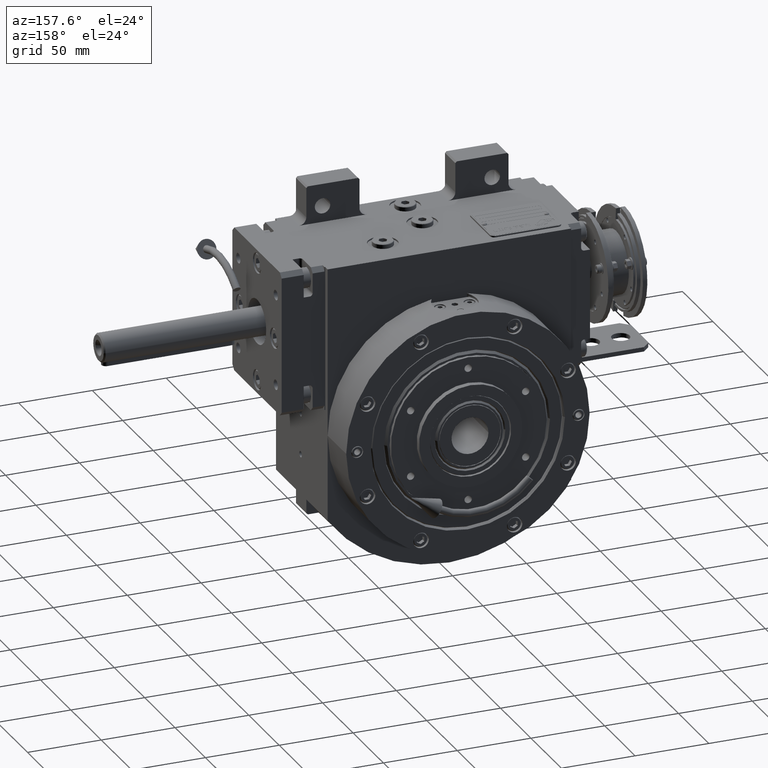
[diagram: clean part render]
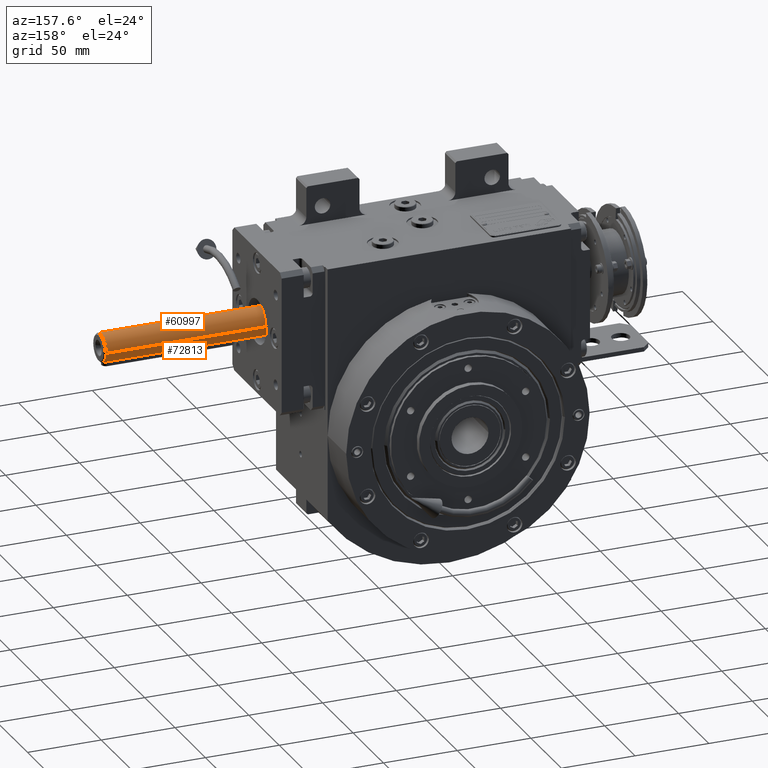
[diagram: same view with one multi-face feature highlighted, each face labeled with its STEP entity id]
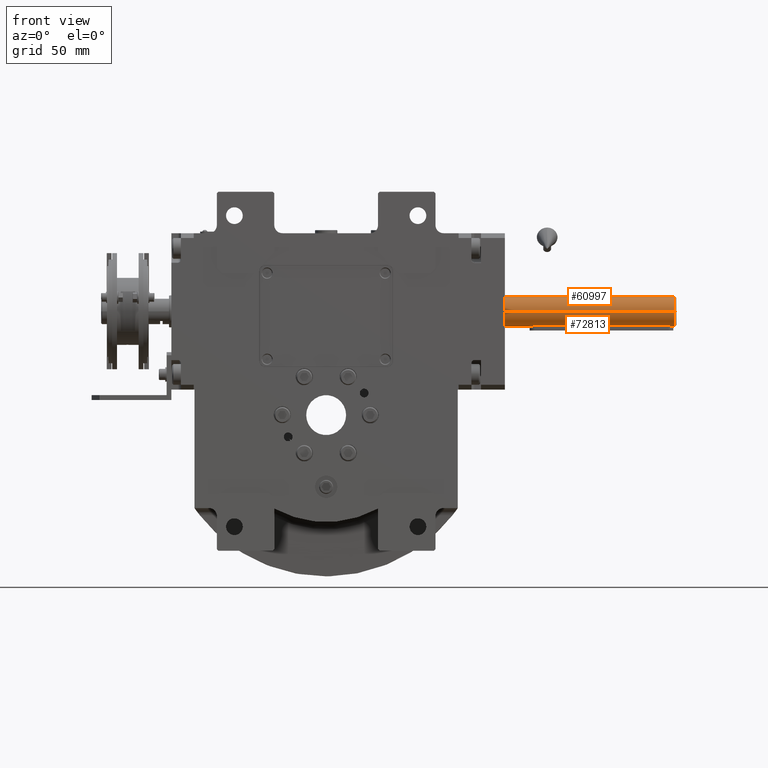
[diagram: same view with one multi-face feature highlighted, each face labeled with its STEP entity id]
A machine part, auxiliary view. The highlighted faces form ONE feature: a constant-radius fillet chain: 2 tangent blend faces with common blend radius 9.5 mm. The faces share edges in the B-rep.
A second angle (front view) of the same feature is appended — it is thin or edge-on in the first view.
Their STEP definitions:
[1] entity #72813 (Cylinder):
#374 = CARTESIAN_POINT ( 'NONE',  ( 2.920503050970467473, -96.80692283689413102, 9.041319886050864341 ) ) ;
#609 = CARTESIAN_POINT ( 'NONE',  ( 6.328605869028309470E-11, -184.4999999999936051, 9.500000000000023093 ) ) ;
#814 = CARTESIAN_POINT ( 'NONE',  ( 1.435996171197315041, -94.86467874582793058, 9.390445074408972914 ) ) ;
#1460 = CARTESIAN_POINT ( 'NONE',  ( 1.898695255802152593, -183.8233775964068286, 9.308038177493170195 ) ) ;
#1668 = CARTESIAN_POINT ( 'NONE',  ( 2.896333877870730600, -96.71220316792228289, 9.048659579327384961 ) ) ;
#2229 = CYLINDRICAL_SURFACE ( 'NONE', #40238, 9.500000000000000000 ) ;
#2764 = CARTESIAN_POINT ( 'NONE',  ( 1.110860850581155246, -184.2868045359008136, 9.434806866654129820 ) ) ;
#2768 = VERTEX_POINT ( 'NONE', #84080 ) ;
#2968 = CARTESIAN_POINT ( 'NONE',  ( -2.768052872245681861, -96.34331565917344165, 9.087531888042622796 ) ) ;
#3434 = CARTESIAN_POINT ( 'NONE',  ( -9.499754194381903716, -185.4997542087409101, 1.243514928141055798 ) ) ;
#3487 = VECTOR ( 'NONE', #62989, 1000.000000000000000 ) ;
#3531 = ORIENTED_EDGE ( 'NONE', *, *, #79882, .F. ) ;
#3860 = DIRECTION ( 'NONE',  ( 4.683861624749757595E-31, -1.000000000000000000, -9.367723249499515189E-31 ) ) ;
#4069 = EDGE_CURVE ( 'NONE', #2768, #30997, #28482, .T. ) ;
#4936 = VERTEX_POINT ( 'NONE', #50949 ) ;
#5118 = CARTESIAN_POINT ( 'NONE',  ( -1.158690065661222235, -184.2672150555362975, 9.429034016073364555 ) ) ;
#5531 = CARTESIAN_POINT ( 'NONE',  ( -2.896333950407050661, -182.2877965705343968, 9.048659544944911204 ) ) ;
#5961 = CARTESIAN_POINT ( 'NONE',  ( -2.654035528270655586, -182.9122416696433788, 9.123168940508953995 ) ) ;
#6256 = B_SPLINE_CURVE_WITH_KNOTS ( 'NONE', 3,
 ( #609, #27115, #25821, #78777, #18892, #58358, #45388, #47520, #2764, #54875, #68315, #7586, #80474, #22316, #8871, #42309, #1460, #40567, #14540, #48804, #47096, #75256, #41014, #73543, #20608, #27951, #21024, #35353, #67479, #21467, #14976, #8029, #9310, #61825, #74840, #14099, #8442 ),
 .UNSPECIFIED., .F., .F.,
 ( 4, 2, 2, 1, 1, 1, 2, 2, 2, 2, 2, 2, 2, 2, 2, 2, 1, 1, 2, 2, 4 ),
 ( 0.5000000000000000000, 0.5624999999999206191, 0.5937499999998809841, 0.6093749999998611111, 0.6171874999998497868, 0.6210937499998456790, 0.6230468749998420153, 0.6249999999998383515, 0.6874999999998678835, 0.7187499999998826494, 0.7343749999998923084, 0.7421874999998970823, 0.7499999999999018563, 0.8124999999999580336, 0.8437499999999860112, 0.8593750000000047740, 0.8671875000000142109, 0.8710937500000129896, 0.8730468750000125455, 0.8750000000000119904, 1.000000000000000000 ),
 .UNSPECIFIED. ) ;
#6413 = CARTESIAN_POINT ( 'NONE',  ( -2.332787681812009239, -183.3871786385692815, 9.209767900739516122 ) ) ;
#6927 = CARTESIAN_POINT ( 'NONE',  ( 1.158689130677410084, -94.73278455522860497, 9.429034128071357657 ) ) ;
#7349 = CARTESIAN_POINT ( 'NONE',  ( -0.6700261784408713117, -94.57411789480762820, 9.476593792608097644 ) ) ;
#7586 = CARTESIAN_POINT ( 'NONE',  ( 1.148703745862511338, -184.2713712515663644, 9.430257407298213934 ) ) ;
#7690 = DIRECTION ( 'NONE',  ( 4.683861624749757595E-31, -1.000000000000000000, -9.367723249499515189E-31 ) ) ;
#8029 = CARTESIAN_POINT ( 'NONE',  ( 2.764238398039184030, -182.6657623577157779, 9.088697177468000987 ) ) ;
#8226 = CARTESIAN_POINT ( 'NONE',  ( 1.324139200224776047, -94.80771358181858943, 9.406950166185275464 ) ) ;
#8442 = CARTESIAN_POINT ( 'NONE',  ( 2.999999999999900968, -181.5000000000000000, 9.013878188659973034 ) ) ;
#8641 = CARTESIAN_POINT ( 'NONE',  ( -2.309831205498338313, -95.56718997630940748, 9.217002098052509140 ) ) ;
#8871 = CARTESIAN_POINT ( 'NONE',  ( 1.680644856745512117, -183.9869637213608939, 9.349632015491161852 ) ) ;
#9310 = CARTESIAN_POINT ( 'NONE',  ( 2.767317494185540294, -182.6584341510141485, 9.087756606422052741 ) ) ;
#9448 = B_SPLINE_CURVE_WITH_KNOTS ( 'NONE', 3,
 ( #28157, #47740, #66809, #374, #1668, #61157, #21674, #80683, #48180, #74193, #79828, #47293, #41228, #27317, #14750, #67674, #59437, #13466, #13013, #20391, #33400, #46880, #54645, #39485, #59852, #814, #8226, #13885, #65970, #52923, #19947, #60743, #46444, #6927, #80263, #26882, #73330, #40342, #7349, #33835, #54212, #53791, #73749, #14305, #34693, #15169, #69380, #48585, #23395, #68085, #62042, #29898, #9928, #22517, #63332, #61597, #62451, #8641, #75035, #55926, #23811, #22095, #74615, #28608, #62880, #55094, #35992, #49871, #2968, #75918, #30330, #42945 ),
 .UNSPECIFIED., .F., .F.,
 ( 4, 2, 2, 1, 1, 1, 2, 2, 2, 2, 2, 2, 2, 2, 2, 2, 1, 1, 2, 2, 2, 2, 2, 1, 1, 1, 2, 2, 2, 2, 2, 2, 2, 2, 2, 2, 1, 1, 2, 2, 4 ),
 ( 0.000000000000000000, 0.06250000000001260103, 0.09375000000001888767, 0.1093750000000198869, 0.1171875000000204003, 0.1210937500000185685, 0.1230468750000176942, 0.1250000000000167921, 0.1875000000000880962, 0.2187500000001255385, 0.2343750000001428579, 0.2421875000001514899, 0.2500000000001601497, 0.3125000000002409184, 0.3437500000002813860, 0.3593750000003026468, 0.3671875000003120837, 0.3710937500003168021, 0.3730468750003180234, 0.3750000000003192446, 0.5000000000003188561, 0.5625000000003187450, 0.5937500000003181899, 0.6093750000003186340, 0.6171875000003180789, 0.6210937500003170797, 0.6230468750003165246, 0.6250000000003160805, 0.6875000000003245182, 0.7187500000003298473, 0.7343750000003326228, 0.7421875000003339551, 0.7500000000003352874, 0.8125000000003389511, 0.8437500000003407274, 0.8593750000003418377, 0.8671875000003451683, 0.8710937500003468337, 0.8730468750003445022, 0.8750000000003422818, 1.000000000000000000 ),
 .UNSPECIFIED. ) ;
#9928 = CARTESIAN_POINT ( 'NONE',  ( -1.943068492336376130, -95.21351398759517792, 9.299014739455403245 ) ) ;
#9957 = CARTESIAN_POINT ( 'NONE',  ( 9.499754196004518647, -185.4997542087252214, 1.243514915866845039 ) ) ;
#12065 = CARTESIAN_POINT ( 'NONE',  ( -2.801440523473028854, -182.5737456935509044, 9.077383305506369737 ) ) ;
#13013 = CARTESIAN_POINT ( 'NONE',  ( 2.233000185789806746, -95.49633372963562294, 9.234080571284474459 ) ) ;
#13466 = CARTESIAN_POINT ( 'NONE',  ( 2.294623599499060695, -95.56646025446697479, 9.219224849880713890 ) ) ;
#13670 = VECTOR ( 'NONE', #7690, 1000.000000000000000 ) ;
#13885 = CARTESIAN_POINT ( 'NONE',  ( 1.288025263247386087, -94.79030264777989601, 9.412060777959782243 ) ) ;
#14099 = CARTESIAN_POINT ( 'NONE',  ( 2.999999999999922728, -181.9070530595016066, 9.018042291469070548 ) ) ;
#14305 = CARTESIAN_POINT ( 'NONE',  ( -1.110854838130794997, -94.71319305268598043, 9.434807603659800535 ) ) ;
#14395 = CARTESIAN_POINT ( 'NONE',  ( 2.999999999999900968, -181.5000000000000000, 9.013878188659973034 ) ) ;
#14540 = CARTESIAN_POINT ( 'NONE',  ( 2.009855530698375414, -183.7274119753677439, 9.284892392217921397 ) ) ;
#14627 = EDGE_LOOP ( 'NONE', ( #15214, #20190, #24742, #3531, #30835 ) ) ;
#14750 = CARTESIAN_POINT ( 'NONE',  ( 2.499491723490012696, -95.83803613019898648, 9.166504859322618159 ) ) ;
#14976 = CARTESIAN_POINT ( 'NONE',  ( 2.759557725807158413, -182.6768411226915987, 9.090128963701895159 ) ) ;
#15169 = CARTESIAN_POINT ( 'NONE',  ( -1.140767914176999964, -94.72534861557059571, 9.431223342483049166 ) ) ;
#15214 = ORIENTED_EDGE ( 'NONE', *, *, #46593, .T. ) ;
#15621 = CARTESIAN_POINT ( 'NONE',  ( -7.596638435447587767, -185.4997542087380396, 5.838042789439123581 ) ) ;
#16072 = CARTESIAN_POINT ( 'NONE',  ( 1.243514922003853274, -185.4997542087323552, 9.499754195193936823 ) ) ;
#16148 = FACE_BOUND ( 'NONE', #14627, .T. ) ;
#16494 = CARTESIAN_POINT ( 'NONE',  ( -4.784256514783731262, -185.4997542087358795, 8.300755913230570826 ) ) ;
#16648 = VECTOR ( 'NONE', #69075, 1000.000000000000000 ) ;
#17768 = CARTESIAN_POINT ( 'NONE',  ( -3.000000000000099032, -97.50000000000000000, 9.013878188659973034 ) ) ;
#18138 = CARTESIAN_POINT ( 'NONE',  ( -2.853716826606122581, -182.4266303042486470, 9.061558790492936666 ) ) ;
#18892 = CARTESIAN_POINT ( 'NONE',  ( 0.7671320443956112234, -184.4020199712927308, 9.469272463188925570 ) ) ;
#19006 = CARTESIAN_POINT ( 'NONE',  ( -3.000000000000075495, -181.7034760972285881, 9.015959573848046915 ) ) ;
#19867 = VERTEX_POINT ( 'NONE', #14395 ) ;
#19947 = CARTESIAN_POINT ( 'NONE',  ( 1.181140549333251411, -94.74227524995970384, 9.426234890811809208 ) ) ;
#20190 = ORIENTED_EDGE ( 'NONE', *, *, #81052, .F. ) ;
#20391 = CARTESIAN_POINT ( 'NONE',  ( 2.211729689299838153, -95.47286155067132540, 9.239144193336677802 ) ) ;
#20608 = CARTESIAN_POINT ( 'NONE',  ( 2.602469015158392018, -182.9955727325826160, 9.137631542706252219 ) ) ;
#21024 = CARTESIAN_POINT ( 'NONE',  ( 2.699222470889498293, -182.8098876183477159, 9.108662257717114130 ) ) ;
#21467 = CARTESIAN_POINT ( 'NONE',  ( 2.748194182956040343, -182.7032927342457924, 9.093616305902523678 ) ) ;
#21555 = CARTESIAN_POINT ( 'NONE',  ( -9.500000000000065725, -66.02960782943348761, 2.609024107869117870E-12 ) ) ;
#21674 = CARTESIAN_POINT ( 'NONE',  ( 2.830818052340046354, -96.50476281573874360, 9.068480858057716532 ) ) ;
#22095 = CARTESIAN_POINT ( 'NONE',  ( -2.699222432197005972, -96.19011230137498103, 9.108662277938814000 ) ) ;
#22122 = CARTESIAN_POINT ( 'NONE',  ( 9.499938531693230104, -185.4999385694899843, -2.358706840954738482E-07 ) ) ;
#22203 = FACE_OUTER_BOUND ( 'NONE', #53186, .T. ) ;
#22316 = CARTESIAN_POINT ( 'NONE',  ( 1.432446507911423694, -184.1431647215893861, 9.392028249004720664 ) ) ;
#22517 = CARTESIAN_POINT ( 'NONE',  ( -2.009855589155224553, -95.27258807728566126, 9.284892378324565598 ) ) ;
#23395 = CARTESIAN_POINT ( 'NONE',  ( -1.432446504045519209, -94.85683527585973707, 9.392028251569573882 ) ) ;
#23811 = CARTESIAN_POINT ( 'NONE',  ( -2.645267199348790843, -96.08261101669754112, 9.124972257304124312 ) ) ;
#24646 = CARTESIAN_POINT ( 'NONE',  ( -1.943281275480839732, -183.7993588875465889, 9.300959572582330637 ) ) ;
#24742 = ORIENTED_EDGE ( 'NONE', *, *, #4069, .F. ) ;
#25061 = LINE ( 'NONE', #31172, #77577 ) ;
#25480 = CARTESIAN_POINT ( 'NONE',  ( -1.288025277366784405, -184.2096973454183058, 9.412060778189172083 ) ) ;
#25821 = CARTESIAN_POINT ( 'NONE',  ( 0.3797345513503766479, -184.4823960739408051, 9.494147135845549812 ) ) ;
#26026 = EDGE_CURVE ( 'NONE', #84006, #27529, #57885, .T. ) ;
#26349 = CARTESIAN_POINT ( 'NONE',  ( -0.3747365616103432995, -184.5000000000000000, 9.500000000000042633 ) ) ;
#26882 = CARTESIAN_POINT ( 'NONE',  ( 0.3746751130923832718, -94.50000003100289803, 9.499992998717548431 ) ) ;
#27115 = CARTESIAN_POINT ( 'NONE',  ( 0.1873682808050524118, -184.5000000000000568, 9.500000000000047962 ) ) ;
#27317 = CARTESIAN_POINT ( 'NONE',  ( 2.654035575129012337, -96.08775841754081171, 9.123168921844232671 ) ) ;
#27529 = VERTEX_POINT ( 'NONE', #77492 ) ;
#27951 = CARTESIAN_POINT ( 'NONE',  ( 2.645267265842243809, -182.9173888571903035, 9.124972229863629991 ) ) ;
#28157 = CARTESIAN_POINT ( 'NONE',  ( 2.999999999999900968, -97.50000000000000000, 9.013878188659973034 ) ) ;
#28482 = B_SPLINE_CURVE_WITH_KNOTS ( 'NONE', 3,
 ( #52816, #19006, #31592, #65868, #5531, #18138, #32007, #12065, #32444, #45492, #45903, #38525, #58898, #5961, #85795, #71508, #6413, #78015, #58463, #57625, #84091, #32890, #24646, #39379, #84925, #59338, #51133, #25480, #51975, #77590, #51541, #65005, #64585, #5118, #44617, #26349, #85372 ),
 .UNSPECIFIED., .F., .F.,
 ( 4, 2, 2, 1, 1, 1, 2, 2, 2, 2, 2, 2, 2, 2, 2, 2, 1, 1, 2, 2, 4 ),
 ( 0.000000000000000000, 0.06249999999996323774, 0.09374999999994056143, 0.1093749999999292372, 0.1171874999999193423, 0.1210937499999143740, 0.1230468749999119038, 0.1249999999999094336, 0.1874999999999186762, 0.2187499999999195643, 0.2343749999999200084, 0.2421874999999227840, 0.2499999999999255595, 0.3124999999999716338, 0.3437499999999969469, 0.3593750000000072720, 0.3671875000000148215, 0.3710937500000186517, 0.3730468750000182077, 0.3750000000000177636, 0.5000000000000000000 ),
 .UNSPECIFIED. ) ;
#28608 = CARTESIAN_POINT ( 'NONE',  ( -2.737669309331704603, -96.27301801012754368, 9.096856623353525961 ) ) ;
#28882 = CARTESIAN_POINT ( 'NONE',  ( 9.499999999999934275, -66.02960782943348761, -2.081668171172168513E-12 ) ) ;
#29343 = CARTESIAN_POINT ( 'NONE',  ( 2.999999999999900968, -97.50000000000000000, 9.013878188659973034 ) ) ;
#29898 = CARTESIAN_POINT ( 'NONE',  ( -1.898695291269320906, -95.17662243233962727, 9.308038168896894504 ) ) ;
#30330 = CARTESIAN_POINT ( 'NONE',  ( -3.000000000000076383, -97.09294754107436631, 9.018042211120356200 ) ) ;
#30835 = ORIENTED_EDGE ( 'NONE', *, *, #73067, .F. ) ;
#30997 = VERTEX_POINT ( 'NONE', #61849 ) ;
#31172 = CARTESIAN_POINT ( 'NONE',  ( -9.500000000000065725, -66.02960777374481438, 5.273559366969493567E-13 ) ) ;
#31592 = CARTESIAN_POINT ( 'NONE',  ( -2.979241833863479627, -181.9036015261704620, 9.023080161994625925 ) ) ;
#32007 = CARTESIAN_POINT ( 'NONE',  ( -2.830818109231184376, -182.4952370252211438, 9.068480838544328293 ) ) ;
#32444 = CARTESIAN_POINT ( 'NONE',  ( -2.786101570419483142, -182.6126035861131811, 9.082041225046250332 ) ) ;
#32735 = CIRCLE ( 'NONE', #45203, 9.500000000000000000 ) ;
#32890 = CARTESIAN_POINT ( 'NONE',  ( -2.143571714493754055, -183.5990690381319439, 9.255083310985195766 ) ) ;
#33400 = CARTESIAN_POINT ( 'NONE',  ( 2.167673386560678317, -95.42581808886643557, 9.249494867276307986 ) ) ;
#33835 = CARTESIAN_POINT ( 'NONE',  ( -0.7670909884113928934, -94.59796890611204390, 9.469277274293066426 ) ) ;
#34693 = CARTESIAN_POINT ( 'NONE',  ( -1.128806811709914593, -94.72046102366429920, 9.432663907830590944 ) ) ;
#35353 = CARTESIAN_POINT ( 'NONE',  ( 2.715497913150030751, -182.7756736591285005, 9.103672099854511757 ) ) ;
#35992 = CARTESIAN_POINT ( 'NONE',  ( -2.764238414421965828, -96.33423768111482843, 9.088697178817977118 ) ) ;
#36513 = CARTESIAN_POINT ( 'NONE',  ( -3.000000000000099032, -97.50000000000000000, 9.013878188659973034 ) ) ;
#38525 = CARTESIAN_POINT ( 'NONE',  ( -2.771832820512553752, -182.6475879265620677, 9.086380962506421355 ) ) ;
#39379 = CARTESIAN_POINT ( 'NONE',  ( -1.763473995896153390, -183.9348269312462207, 9.335481101411909677 ) ) ;
#39485 = CARTESIAN_POINT ( 'NONE',  ( 1.763473992615532504, -95.06517306677625356, 9.335481102779599638 ) ) ;
#39876 = VERTEX_POINT ( 'NONE', #17768 ) ;
#40238 = AXIS2_PLACEMENT_3D ( 'NONE', #63435, #42184, #62559 ) ;
#40342 = CARTESIAN_POINT ( 'NONE',  ( -0.3796883316226619121, -94.51759803783039615, 9.494152386371982999 ) ) ;
#40567 = CARTESIAN_POINT ( 'NONE',  ( 1.943068448245731439, -183.7864860495081132, 9.299014750010698549 ) ) ;
#41014 = CARTESIAN_POINT ( 'NONE',  ( 2.309831249869279901, -183.4328099944040673, 9.217002089623829164 ) ) ;
#41228 = CARTESIAN_POINT ( 'NONE',  ( 2.722407647419402554, -96.23347078329821613, 9.101428051586029966 ) ) ;
#42184 = DIRECTION ( 'NONE',  ( -4.683861624749757595E-31, 1.000000000000000000, 9.367723249499515189E-31 ) ) ;
#42309 = CARTESIAN_POINT ( 'NONE',  ( 1.766836905957977821, -183.9270961800697535, 9.333934026802468864 ) ) ;
#42945 = CARTESIAN_POINT ( 'NONE',  ( -3.000000000000099032, -97.50000000000000000, 9.013878188659973034 ) ) ;
#42974 = CARTESIAN_POINT ( 'NONE',  ( -5.838042774714481631, -185.4997542087365900, 7.596638446765302533 ) ) ;
#43388 = CARTESIAN_POINT ( 'NONE',  ( -1.243514909727436279, -185.4997542087337763, 9.499754196799493400 ) ) ;
#44617 = CARTESIAN_POINT ( 'NONE',  ( -0.7705590076993477089, -184.4287509397770464, 9.476588541385053688 ) ) ;
#45203 = AXIS2_PLACEMENT_3D ( 'NONE', #70148, #51038, #50609 ) ;
#45388 = CARTESIAN_POINT ( 'NONE',  ( 0.9847576718654826866, -184.3345789941444082, 9.448970340653003674 ) ) ;
#45492 = CARTESIAN_POINT ( 'NONE',  ( -2.779390074461161930, -182.6291706145195803, 9.084081766147379611 ) ) ;
#45903 = CARTESIAN_POINT ( 'NONE',  ( -2.774885338481180241, -182.6401959572766032, 9.085451969074744838 ) ) ;
#46444 = CARTESIAN_POINT ( 'NONE',  ( 1.160774496560438296, -94.73366271387099857, 9.428775177126883733 ) ) ;
#46593 = EDGE_CURVE ( 'NONE', #4936, #19867, #48903, .T. ) ;
#46880 = CARTESIAN_POINT ( 'NONE',  ( 2.143571658093790244, -95.40093090435816237, 9.255083324433853065 ) ) ;
#47096 = CARTESIAN_POINT ( 'NONE',  ( 2.076755318024074537, -183.6651844787915024, 9.270280687284255805 ) ) ;
#47293 = CARTESIAN_POINT ( 'NONE',  ( 2.771832805300773916, -96.35241203670632615, 9.086380963694887569 ) ) ;
#47520 = CARTESIAN_POINT ( 'NONE',  ( 1.068909784377092498, -184.3033178383005293, 9.439688063907977877 ) ) ;
#47640 = EDGE_CURVE ( 'NONE', #71680, #27529, #25061, .T. ) ;
#47740 = CARTESIAN_POINT ( 'NONE',  ( 2.999999999999924505, -97.29652371718144366, 9.015959598610528758 ) ) ;
#48180 = CARTESIAN_POINT ( 'NONE',  ( 2.786101543077159182, -96.38739634560947422, 9.082041231002220272 ) ) ;
#48585 = CARTESIAN_POINT ( 'NONE',  ( -1.281189331536717102, -94.78376777840924206, 9.414028762089033719 ) ) ;
#48613 = CARTESIAN_POINT ( 'NONE',  ( -9.252501018951663880, -185.4997542087402280, 2.486540573668342802 ) ) ;
#48804 = CARTESIAN_POINT ( 'NONE',  ( 2.032155223289070722, -183.7070980101934765, 9.280087070192150733 ) ) ;
#48903 = LINE ( 'NONE', #29343, #13670 ) ;
#49040 = CARTESIAN_POINT ( 'NONE',  ( 9.252501022178766021, -185.4997542087259035, 2.486540561715313569 ) ) ;
#49555 = CARTESIAN_POINT ( 'NONE',  ( 9.499999999999934275, -66.02960777374481438, 0.000000000000000000 ) ) ;
#49871 = CARTESIAN_POINT ( 'NONE',  ( -2.767317514020239955, -96.34156589635169610, 9.087756606422226824 ) ) ;
#50313 = CARTESIAN_POINT ( 'NONE',  ( 2.486540567692019810, -185.4997542087316447, 9.252501020566656464 ) ) ;
#50479 = ORIENTED_EDGE ( 'NONE', *, *, #72709, .F. ) ;
#50609 = DIRECTION ( 'NONE',  ( 1.000000000000000000, 2.191229653865440657E-14, -8.905157313309151020E-15 ) ) ;
#50949 = CARTESIAN_POINT ( 'NONE',  ( 2.999999999999900968, -97.50000000000000000, 9.013878188659973034 ) ) ;
#51038 = DIRECTION ( 'NONE',  ( 2.243819184383926999E-14, -0.9999999999999997780, -2.362003634641579324E-08 ) ) ;
#51133 = CARTESIAN_POINT ( 'NONE',  ( -1.324139209665892380, -184.1922864134782287, 9.406950166813707881 ) ) ;
#51541 = CARTESIAN_POINT ( 'NONE',  ( -1.181140583822274825, -184.2577247352568861, 9.426234889042033771 ) ) ;
#51975 = CARTESIAN_POINT ( 'NONE',  ( -1.235793678960707132, -184.2337119796655713, 9.419140066780379072 ) ) ;
#52006 = CARTESIAN_POINT ( 'NONE',  ( 9.499938531693230104, -185.4999385694899843, -2.358706840954738482E-07 ) ) ;
#52816 = CARTESIAN_POINT ( 'NONE',  ( -3.000000000000099032, -181.5000000000000000, 9.013878188660235935 ) ) ;
#52923 = CARTESIAN_POINT ( 'NONE',  ( 1.210162136446848447, -94.75480631744797222, 9.422533055056245388 ) ) ;
#53186 = EDGE_LOOP ( 'NONE', ( #70935, #81951, #50479, #58815 ) ) ;
#53791 = CARTESIAN_POINT ( 'NONE',  ( -0.9847354084976250865, -94.66541308360622509, 9.448973017050654732 ) ) ;
#54212 = CARTESIAN_POINT ( 'NONE',  ( -0.9122596640286589897, -94.64162011464802049, 9.456107016229896800 ) ) ;
#54645 = CARTESIAN_POINT ( 'NONE',  ( 1.943281250425769047, -95.20064109628084736, 9.300959578248258808 ) ) ;
#54875 = CARTESIAN_POINT ( 'NONE',  ( 1.128810249548175326, -184.2795375780040956, 9.432663483785052705 ) ) ;
#55094 = CARTESIAN_POINT ( 'NONE',  ( -2.759557737054876281, -96.32315890357543253, 9.090128967039166952 ) ) ;
#55197 = LINE ( 'NONE', #49555, #16648 ) ;
#55926 = CARTESIAN_POINT ( 'NONE',  ( -2.602468936312931191, -96.00442713054006560, 9.137631571766803518 ) ) ;
#56402 = CARTESIAN_POINT ( 'NONE',  ( 5.838042784535760532, -185.4997542087294562, 7.596638439226678585 ) ) ;
#56473 = LINE ( 'NONE', #36513, #3487 ) ;
#57625 = CARTESIAN_POINT ( 'NONE',  ( -2.211729706841873089, -183.5271384300049817, 9.239144188918659850 ) ) ;
#57885 = B_SPLINE_CURVE_WITH_KNOTS ( 'NONE', 3,
 ( #22122, #9957, #49040, #82435, #68999, #56402, #76785, #50313, #16072, #43388, #70284, #16494, #42974, #15621, #63362, #48613, #3434, #61627 ),
 .UNSPECIFIED., .F., .F.,
 ( 4, 2, 2, 2, 2, 2, 2, 2, 4 ),
 ( 0.000000000000000000, 0.1249999999999999445, 0.2499999999999998890, 0.3749999999999998335, 0.4999999999999997780, 0.6249999999999997780, 0.7499999999999997780, 0.8749999999999997780, 1.000000000000000000 ),
 .UNSPECIFIED. ) ;
#58358 = CARTESIAN_POINT ( 'NONE',  ( 0.9122890765349430664, -184.3583704295743644, 9.456103518841301181 ) ) ;
#58463 = CARTESIAN_POINT ( 'NONE',  ( -2.233000195904820462, -183.5036662589354819, 9.234080568694944091 ) ) ;
#58815 = ORIENTED_EDGE ( 'NONE', *, *, #80766, .T. ) ;
#58898 = CARTESIAN_POINT ( 'NONE',  ( -2.722407627469024760, -182.7665292687121905, 9.101428064431489773 ) ) ;
#59338 = CARTESIAN_POINT ( 'NONE',  ( -1.435996170219196344, -184.1353212544606777, 9.390445075743341974 ) ) ;
#59437 = CARTESIAN_POINT ( 'NONE',  ( 2.332787702123883644, -95.61282138611187520, 9.209767895282006123 ) ) ;
#59852 = CARTESIAN_POINT ( 'NONE',  ( 1.515281913558550908, -94.90896229248046723, 9.377877337954403814 ) ) ;
#60743 = CARTESIAN_POINT ( 'NONE',  ( 1.168895054515746823, -94.73708419165159000, 9.427766395453680559 ) ) ;
#61157 = CARTESIAN_POINT ( 'NONE',  ( 2.853716761842567173, -96.57336949739296017, 9.061558815732546179 ) ) ;
#61597 = CARTESIAN_POINT ( 'NONE',  ( -2.076755391941074169, -95.33481559199252331, 9.270280669719893396 ) ) ;
#61627 = CARTESIAN_POINT ( 'NONE',  ( -9.500000000000000000, -185.4999692847449921, 0.000000000000000000 ) ) ;
#61825 = CARTESIAN_POINT ( 'NONE',  ( 2.768052852163350952, -182.6566843888400911, 9.087531888188664198 ) ) ;
#61849 = CARTESIAN_POINT ( 'NONE',  ( 6.328605869028309470E-11, -184.4999999999936051, 9.500000000000023093 ) ) ;
#62042 = CARTESIAN_POINT ( 'NONE',  ( -1.766836919377699378, -95.07290382878910862, 9.333934023284152559 ) ) ;
#62451 = CARTESIAN_POINT ( 'NONE',  ( -2.097753054626744440, -95.35511243527099623, 9.265577998058889264 ) ) ;
#62559 = DIRECTION ( 'NONE',  ( 1.000000000000000000, 0.000000000000000000, -8.437694987151189707E-15 ) ) ;
#62880 = CARTESIAN_POINT ( 'NONE',  ( -2.748194182531853880, -96.29670726438014583, 9.093616313614923286 ) ) ;
#62989 = DIRECTION ( 'NONE',  ( 4.683861624749757595E-31, -1.000000000000000000, -9.367723249499515189E-31 ) ) ;
#63332 = CARTESIAN_POINT ( 'NONE',  ( -2.032155286772094893, -95.29290204814573428, 9.280087055119521366 ) ) ;
#63362 = CARTESIAN_POINT ( 'NONE',  ( -8.300755903954152970, -185.4997542087387501, 4.784256530872669444 ) ) ;
#63435 = CARTESIAN_POINT ( 'NONE',  ( 2.927413515468598497E-29, -65.50000000000000000, 0.000000000000000000 ) ) ;
#64585 = CARTESIAN_POINT ( 'NONE',  ( -1.160774536074904217, -184.2663372695468240, 9.428775174833962325 ) ) ;
#65005 = CARTESIAN_POINT ( 'NONE',  ( -1.168895091996161817, -184.2629157924900198, 9.427766393373087084 ) ) ;
#65868 = CARTESIAN_POINT ( 'NONE',  ( -2.920503118024772249, -182.1930768801151999, 9.041319848652578983 ) ) ;
#65970 = CARTESIAN_POINT ( 'NONE',  ( 1.235793655949103842, -94.76628800990964407, 9.419140067395154858 ) ) ;
#66809 = CARTESIAN_POINT ( 'NONE',  ( 2.979241796393061747, -97.09639819423993856, 9.023080199202059504 ) ) ;
#67479 = CARTESIAN_POINT ( 'NONE',  ( 2.737669319192265860, -182.7269819676678821, 9.096856612339960790 ) ) ;
#67674 = CARTESIAN_POINT ( 'NONE',  ( 2.439240842894490946, -95.74972275169187697, 9.182737610497266445 ) ) ;
#68085 = CARTESIAN_POINT ( 'NONE',  ( -1.680644860620502890, -95.01303628113659272, 9.349632014292716065 ) ) ;
#68315 = CARTESIAN_POINT ( 'NONE',  ( 1.140769612212576778, -184.2746506841175744, 9.431223130497034646 ) ) ;
#68999 = CARTESIAN_POINT ( 'NONE',  ( 7.596638442999844365, -185.4997542087280067, 5.838042779628313639 ) ) ;
#69075 = DIRECTION ( 'NONE',  ( 4.683861624749757595E-31, -1.000000000000000000, -9.367723249499515189E-31 ) ) ;
#69380 = CARTESIAN_POINT ( 'NONE',  ( -1.148703824343773716, -94.72862878096618999, 9.430257401907581993 ) ) ;
#70148 = CARTESIAN_POINT ( 'NONE',  ( 8.881784197001680280E-16, -66.02960777374499912, 0.000000000000000000 ) ) ;
#70284 = CARTESIAN_POINT ( 'NONE',  ( -2.486540555734554125, -185.4997542087344868, 9.252501023777146116 ) ) ;
#70935 = ORIENTED_EDGE ( 'NONE', *, *, #47640, .T. ) ;
#71508 = CARTESIAN_POINT ( 'NONE',  ( -2.439240799002427185, -183.2502773076358835, 9.182737623274404015 ) ) ;
#71680 = VERTEX_POINT ( 'NONE', #21555 ) ;
#72709 = EDGE_CURVE ( 'NONE', #77533, #84006, #55197, .T. ) ;
#72813 = ADVANCED_FACE ( 'NONE', ( #22203, #16148 ), #2229, .T. ) ;
#73067 = EDGE_CURVE ( 'NONE', #4936, #39876, #9448, .T. ) ;
#73330 = CARTESIAN_POINT ( 'NONE',  ( -0.1873371841888539502, -94.49999998449855809, 9.500003500639603971 ) ) ;
#73543 = CARTESIAN_POINT ( 'NONE',  ( 2.447916549960599930, -183.2452895626932161, 9.180967475468930772 ) ) ;
#73749 = CARTESIAN_POINT ( 'NONE',  ( -1.068898013671426783, -94.69667761856985067, 9.439689495249819373 ) ) ;
#74193 = CARTESIAN_POINT ( 'NONE',  ( 2.779390052587141557, -96.37082933166679766, 9.084081769913961324 ) ) ;
#74615 = CARTESIAN_POINT ( 'NONE',  ( -2.715497885293330693, -96.22432628079168637, 9.103672116871825537 ) ) ;
#74840 = CARTESIAN_POINT ( 'NONE',  ( 2.916387922539836808, -182.2997173347485784, 9.042361883596010230 ) ) ;
#75035 = CARTESIAN_POINT ( 'NONE',  ( -2.447916466177025629, -95.75471032090040069, 9.180967499812286547 ) ) ;
#75256 = CARTESIAN_POINT ( 'NONE',  ( 2.097752953599158587, -183.6448876638706054, 9.265578021900324757 ) ) ;
#75918 = CARTESIAN_POINT ( 'NONE',  ( -2.916388153653206583, -96.70028324152360710, 9.042361802785055858 ) ) ;
#76785 = CARTESIAN_POINT ( 'NONE',  ( 4.784256525513384872, -185.4997542087301383, 8.300755907052970173 ) ) ;
#77492 = CARTESIAN_POINT ( 'NONE',  ( -9.500000000000000000, -185.4999692847449921, 0.000000000000000000 ) ) ;
#77533 = VERTEX_POINT ( 'NONE', #28882 ) ;
#77577 = VECTOR ( 'NONE', #3860, 1000.000000000000000 ) ;
#77590 = CARTESIAN_POINT ( 'NONE',  ( -1.210162164372792226, -184.2451936701964144, 9.422533053957987903 ) ) ;
#78015 = CARTESIAN_POINT ( 'NONE',  ( -2.294623589569102062, -183.4335397566698873, 9.219224852411510795 ) ) ;
#78777 = CARTESIAN_POINT ( 'NONE',  ( 0.6700714419449265158, -184.4258717385638420, 9.476588543382046481 ) ) ;
#79828 = CARTESIAN_POINT ( 'NONE',  ( 2.774885320377094899, -96.35980399869140456, 9.085451971357679568 ) ) ;
#79882 = EDGE_CURVE ( 'NONE', #39876, #2768, #56473, .T. ) ;
#80263 = CARTESIAN_POINT ( 'NONE',  ( 0.7706161421276102041, -94.57127284567913250, 9.476581536853792898 ) ) ;
#80474 = CARTESIAN_POINT ( 'NONE',  ( 1.281189312199986219, -184.2162322338117519, 9.414028761277068114 ) ) ;
#80683 = CARTESIAN_POINT ( 'NONE',  ( 2.801440484650112417, -96.42625420590132990, 9.077383316318284656 ) ) ;
#80766 = EDGE_CURVE ( 'NONE', #77533, #71680, #32735, .T. ) ;
#81052 = EDGE_CURVE ( 'NONE', #30997, #19867, #6256, .T. ) ;
#81951 = ORIENTED_EDGE ( 'NONE', *, *, #26026, .F. ) ;
#82435 = CARTESIAN_POINT ( 'NONE',  ( 8.300755910146651928, -185.4997542087273530, 4.784256520151581427 ) ) ;
#84006 = VERTEX_POINT ( 'NONE', #52006 ) ;
#84080 = CARTESIAN_POINT ( 'NONE',  ( -3.000000000000099032, -181.5000000000000000, 9.013878188660235935 ) ) ;
#84091 = CARTESIAN_POINT ( 'NONE',  ( -2.167673420560284558, -183.5741818754212602, 9.249494858957907795 ) ) ;
#84925 = CARTESIAN_POINT ( 'NONE',  ( -1.515281910481894423, -184.0910377094125181, 9.377877339104461640 ) ) ;
#85372 = CARTESIAN_POINT ( 'NONE',  ( 6.328605869028309470E-11, -184.4999999999936051, 9.500000000000023093 ) ) ;
#85795 = CARTESIAN_POINT ( 'NONE',  ( -2.499491673930207547, -183.1619639441497895, 9.166504875032169153 ) ) ;
[2] entity #60997 (Cylinder):
#485 = CARTESIAN_POINT ( 'NONE',  ( 5.838042626060424567, -185.4997542091771834, -7.596638554311729408 ) ) ;
#1188 = VERTEX_POINT ( 'NONE', #28440 ) ;
#1628 = AXIS2_PLACEMENT_3D ( 'NONE', #54302, #61691, #9608 ) ;
#2973 = CARTESIAN_POINT ( 'NONE',  ( -1.243514915527619058, -185.4997542090222566, -9.499754195707582838 ) ) ;
#3860 = DIRECTION ( 'NONE',  ( 4.683861624749757595E-31, -1.000000000000000000, -9.367723249499515189E-31 ) ) ;
#6166 = CARTESIAN_POINT ( 'NONE',  ( 7.967081744408707653E-14, -185.4998771044777470, -9.499877097840878193 ) ) ;
#9608 = DIRECTION ( 'NONE',  ( 1.000000000000000000, 0.000000000000000000, -8.437694987151189707E-15 ) ) ;
#10371 = CARTESIAN_POINT ( 'NONE',  ( -2.486540561048308895, -185.4997542089964497, -9.252501022036188516 ) ) ;
#13983 = CARTESIAN_POINT ( 'NONE',  ( 2.486540486749898360, -185.4997542090997342, -9.252501036898301834 ) ) ;
#14673 = ORIENTED_EDGE ( 'NONE', *, *, #20973, .T. ) ;
#15174 = CARTESIAN_POINT ( 'NONE',  ( -8.300755905722969175, -185.4997542088414662, -4.784256527519994862 ) ) ;
#15260 = FACE_OUTER_BOUND ( 'NONE', #84414, .T. ) ;
#16144 = CIRCLE ( 'NONE', #67355, 9.500000000000000000 ) ;
#16467 = CARTESIAN_POINT ( 'NONE',  ( -4.784256518986815365, -185.4997542089448359, -8.300755910519972858 ) ) ;
#16648 = VECTOR ( 'NONE', #69075, 1000.000000000000000 ) ;
#20902 = CARTESIAN_POINT ( 'NONE',  ( 1.243514878352428132, -185.4997542090738989, -9.499754195655926381 ) ) ;
#20973 = EDGE_CURVE ( 'NONE', #71680, #77533, #16144, .T. ) ;
#21555 = CARTESIAN_POINT ( 'NONE',  ( -9.500000000000065725, -66.02960782943348761, 2.609024107869117870E-12 ) ) ;
#22585 = ORIENTED_EDGE ( 'NONE', *, *, #45463, .F. ) ;
#22605 = CYLINDRICAL_SURFACE ( 'NONE', #1628, 9.500000000000000000 ) ;
#23108 = EDGE_CURVE ( 'NONE', #27529, #1188, #63538, .T. ) ;
#23401 = CARTESIAN_POINT ( 'NONE',  ( -9.500000000000000000, -185.4999692847449921, 0.000000000000000000 ) ) ;
#25061 = LINE ( 'NONE', #31172, #77577 ) ;
#26136 = CARTESIAN_POINT ( 'NONE',  ( 9.499754135733294191, -185.4997542093320817, -1.243515334114831505 ) ) ;
#27416 = CARTESIAN_POINT ( 'NONE',  ( 7.596638274163008298, -185.4997542092288256, -5.838042990514423103 ) ) ;
#27529 = VERTEX_POINT ( 'NONE', #77492 ) ;
#28440 = CARTESIAN_POINT ( 'NONE',  ( 7.967081744408707653E-14, -185.4998771044777470, -9.499877097840878193 ) ) ;
#28882 = CARTESIAN_POINT ( 'NONE',  ( 9.499999999999934275, -66.02960782943348761, -2.081668171172168513E-12 ) ) ;
#31172 = CARTESIAN_POINT ( 'NONE',  ( -9.500000000000065725, -66.02960777374481438, 5.273559366969493567E-13 ) ) ;
#32655 = CARTESIAN_POINT ( 'NONE',  ( 8.300755751091204004, -185.4997542092546325, -4.784256785309867865 ) ) ;
#33994 = ORIENTED_EDGE ( 'NONE', *, *, #72709, .T. ) ;
#34372 = CARTESIAN_POINT ( 'NONE',  ( 4.784256387093698493, -185.4997542091512912, -8.300755980729871197 ) ) ;
#35123 = CARTESIAN_POINT ( 'NONE',  ( -7.596638437810023348, -185.4997542088673583, -5.838042786087140001 ) ) ;
#36128 = B_SPLINE_CURVE_WITH_KNOTS ( 'NONE', 3,
 ( #6166, #20902, #13983, #34372, #485, #27416, #32655, #73850, #26136, #53884 ),
 .UNSPECIFIED., .F., .F.,
 ( 4, 2, 2, 2, 4 ),
 ( 0.5000000074738445432, 0.6250000056053833797, 0.7500000037369223271, 0.8750000018684611636, 1.000000000000000000 ),
 .UNSPECIFIED. ) ;
#45463 = EDGE_CURVE ( 'NONE', #1188, #84006, #36128, .T. ) ;
#46525 = ORIENTED_EDGE ( 'NONE', *, *, #47640, .F. ) ;
#47640 = EDGE_CURVE ( 'NONE', #71680, #27529, #25061, .T. ) ;
#49555 = CARTESIAN_POINT ( 'NONE',  ( 9.499999999999934275, -66.02960777374481438, 0.000000000000000000 ) ) ;
#49643 = DIRECTION ( 'NONE',  ( -1.000000000000000000, 2.191229653865440657E-14, 9.121114458455477800E-15 ) ) ;
#52006 = CARTESIAN_POINT ( 'NONE',  ( 9.499938531693230104, -185.4999385694899843, -2.358706840954738482E-07 ) ) ;
#53884 = CARTESIAN_POINT ( 'NONE',  ( 9.499938531693230104, -185.4999385694899843, -2.358706840954738482E-07 ) ) ;
#54302 = CARTESIAN_POINT ( 'NONE',  ( 2.927413515468598497E-29, -65.50000000000000000, 0.000000000000000000 ) ) ;
#55197 = LINE ( 'NONE', #49555, #16648 ) ;
#55694 = DIRECTION ( 'NONE',  ( -2.243819183873832183E-14, -0.9999999999999997780, 2.362003634641579324E-08 ) ) ;
#56373 = CARTESIAN_POINT ( 'NONE',  ( 7.967081744408707653E-14, -185.4998771044777470, -9.499877097840878193 ) ) ;
#60997 = ADVANCED_FACE ( 'NONE', ( #15260 ), #22605, .T. ) ;
#61691 = DIRECTION ( 'NONE',  ( -4.683861624749757595E-31, 1.000000000000000000, 9.367723249499515189E-31 ) ) ;
#62456 = CARTESIAN_POINT ( 'NONE',  ( -9.252501019696037332, -185.4997542087898523, -2.486540570555257013 ) ) ;
#63538 = B_SPLINE_CURVE_WITH_KNOTS ( 'NONE', 3,
 ( #23401, #81965, #62456, #15174, #35123, #76339, #16467, #10371, #2973, #56373 ),
 .UNSPECIFIED., .F., .F.,
 ( 4, 2, 2, 2, 4 ),
 ( 0.000000000000000000, 0.1250000018684611358, 0.2500000037369222716, 0.3750000056053833797, 0.5000000074738445432 ),
 .UNSPECIFIED. ) ;
#67355 = AXIS2_PLACEMENT_3D ( 'NONE', #70016, #55694, #49643 ) ;
#69075 = DIRECTION ( 'NONE',  ( 4.683861624749757595E-31, -1.000000000000000000, -9.367723249499515189E-31 ) ) ;
#70016 = CARTESIAN_POINT ( 'NONE',  ( 8.881784197002839906E-16, -66.02960777374499912, -1.387778780781445676E-14 ) ) ;
#71680 = VERTEX_POINT ( 'NONE', #21555 ) ;
#72709 = EDGE_CURVE ( 'NONE', #77533, #84006, #55197, .T. ) ;
#73850 = CARTESIAN_POINT ( 'NONE',  ( 9.252500917394270274, -185.4997542093062748, -2.486540930629218327 ) ) ;
#74434 = ORIENTED_EDGE ( 'NONE', *, *, #23108, .F. ) ;
#76339 = CARTESIAN_POINT ( 'NONE',  ( -5.838042778294586732, -185.4997542089189437, -7.596638443734061497 ) ) ;
#77492 = CARTESIAN_POINT ( 'NONE',  ( -9.500000000000000000, -185.4999692847449921, 0.000000000000000000 ) ) ;
#77533 = VERTEX_POINT ( 'NONE', #28882 ) ;
#77577 = VECTOR ( 'NONE', #3860, 1000.000000000000000 ) ;
#81965 = CARTESIAN_POINT ( 'NONE',  ( -9.499754194696134135, -185.4997542087640454, -1.243514925267261040 ) ) ;
#84006 = VERTEX_POINT ( 'NONE', #52006 ) ;
#84414 = EDGE_LOOP ( 'NONE', ( #33994, #22585, #74434, #46525, #14673 ) ) ;